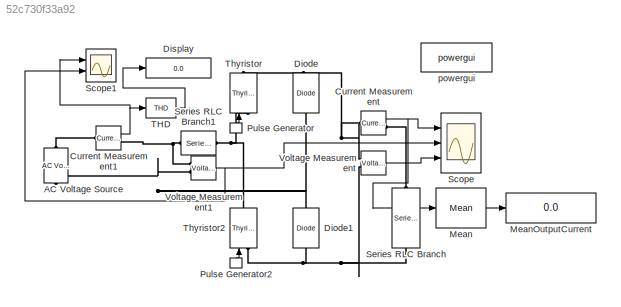
MODEL slx_52c730f33a92
KIND model
CONFIG AbsTol = auto
CONFIG EnableMultiTasking = off
CONFIG FixedStep = auto
CONFIG MaxStep = auto
CONFIG MinStep = auto
CONFIG RelTol = 1e-3
CONFIG SampleTimeConstraint = Unconstrained
CONFIG Solver = FixedStepAuto
CONFIG SolverName = FixedStepAuto
CONFIG StartTime = 0.0
CONFIG StopTime = 2
BLOCK [Reference] AC Voltage Source  REF=powerlib/Electrical
Sources/AC Voltage Source
  Ports = [0, 0, 0, 0, 0, 1, 1]
  SourceBlock = powerlib/Electrical\nSources/AC Voltage Source
  SourceProductBaseCode = PS
  SourceProductName = Simscape Power Systems
  SourceType = AC Voltage Source
BLOCK [Reference] Current Measurement  REF=powerlib/Measurements/Current Measurement
  Ports = [0, 1, 0, 0, 0, 1, 1]
  SourceBlock = powerlib/Measurements/Current Measurement
  SourceProductBaseCode = PS
  SourceProductName = Simscape Power Systems
  SourceType = Current Measurement
  UserDataPersistent = on
BLOCK [Reference] Current Measurement1  REF=powerlib/Measurements/Current Measurement
  Ports = [0, 1, 0, 0, 0, 1, 1]
  SourceBlock = powerlib/Measurements/Current Measurement
  SourceProductBaseCode = PS
  SourceProductName = Simscape Power Systems
  SourceType = Current Measurement
  UserDataPersistent = on
BLOCK [Reference] Diode  REF=powerlib/Power
Electronics/Diode
  Ports = [0, 0, 0, 0, 0, 1, 1]
  SourceBlock = powerlib/Power\nElectronics/Diode
  SourceProductBaseCode = PS
  SourceProductName = Simscape Power Systems
  SourceType = Diode
BLOCK [Reference] Diode1  REF=powerlib/Power
Electronics/Diode
  Ports = [0, 0, 0, 0, 0, 1, 1]
  SourceBlock = powerlib/Power\nElectronics/Diode
  SourceProductBaseCode = PS
  SourceProductName = Simscape Power Systems
  SourceType = Diode
BLOCK [Display] Display
  Decimation = 1
  Ports = [1]
BLOCK [Reference] Mean  REF=powerlib_meascontrol/Measurements/Mean
  Ports = [1, 1]
  SourceBlock = powerlib_meascontrol/Measurements/Mean
  SourceProductBaseCode = PS
  SourceProductName = Simscape Power Systems
  SourceType = Mean
BLOCK [Display] MeanOutputCurrent
  Decimation = 1
  Ports = [1]
BLOCK [DiscretePulseGenerator] Pulse Generator
  Period = 1/50
  PhaseDelay = ((1/50)*(55/360))
  Ports = [0, 1]
  PulseType = Time based
  PulseWidth = 50
BLOCK [DiscretePulseGenerator] Pulse Generator2
  Period = 1/50
  PhaseDelay = ((1/50)*(235/360))
  Ports = [0, 1]
  PulseType = Time based
  PulseWidth = 50
BLOCK [Scope] Scope
  Floating = off
  NumInputPorts = 3
  Ports = [3]
  ScopeSpecificationString = Simulink.scopes.TimeScopeBlockCfg('CurrentConfiguration', extmgr.ConfigurationSet(extmgr.Configuration('Core','General UI',true),extmgr.Configuration('Core','Source UI',true),extmgr.Configuration('Sources','WiredSimulink',true),extmgr.Configuration('Visuals','Time Domain',true,'SerializedDisplays',{struct('MinYLimReal','-353.94397','MaxYLimReal','340.52897','YLabelReal','','MinYLimMag',' 0.00000',...<+1445ch>
BLOCK [Scope] Scope1
  Floating = off
  NumInputPorts = 2
  Ports = [2]
  ScopeSpecificationString = Simulink.scopes.TimeScopeBlockCfg('CurrentConfiguration', extmgr.ConfigurationSet(extmgr.Configuration('Core','General UI',true),extmgr.Configuration('Core','Source UI',true),extmgr.Configuration('Sources','WiredSimulink',true,'DataLoggingVariableName','ScopeData1'),extmgr.Configuration('Visuals','Time Domain',true,'SerializedDisplays',{struct('MinYLimReal','-388.75','MaxYLimReal','379.53498','YLa...<+1452ch>
BLOCK [Reference] Series RLC Branch  REF=powerlib/Elements/Series RLC Branch
  Ports = [0, 0, 0, 0, 0, 1, 1]
  SourceBlock = powerlib/Elements/Series RLC Branch
  SourceProductBaseCode = PS
  SourceProductName = Simscape Power Systems
  SourceType = Series RLC Branch
BLOCK [Reference] Series RLC Branch1  REF=powerlib/Elements/Series RLC Branch
  Ports = [0, 0, 0, 0, 0, 1, 1]
  SourceBlock = powerlib/Elements/Series RLC Branch
  SourceProductBaseCode = PS
  SourceProductName = Simscape Power Systems
  SourceType = Series RLC Branch
BLOCK [Reference] THD  REF=powerlib_meascontrol/Measurements/THD
  Ports = [1, 1]
  SourceBlock = powerlib_meascontrol/Measurements/THD
  SourceProductBaseCode = PS
  SourceProductName = Simscape Power Systems
  SourceType = THD
BLOCK [Reference] Thyristor  REF=powerlib/Power
Electronics/Thyristor
  Ports = [1, 0, 0, 0, 0, 1, 1]
  SourceBlock = powerlib/Power\nElectronics/Thyristor
  SourceProductBaseCode = PS
  SourceProductName = Simscape Power Systems
  SourceType = Thyristor
BLOCK [Reference] Thyristor2  REF=powerlib/Power
Electronics/Thyristor
  Ports = [1, 0, 0, 0, 0, 1, 1]
  SourceBlock = powerlib/Power\nElectronics/Thyristor
  SourceProductBaseCode = PS
  SourceProductName = Simscape Power Systems
  SourceType = Thyristor
BLOCK [Reference] Voltage Measurement  REF=powerlib/Measurements/Voltage Measurement
  Ports = [0, 1, 0, 0, 0, 2]
  SourceBlock = powerlib/Measurements/Voltage Measurement
  SourceProductBaseCode = PS
  SourceProductName = Simscape Power Systems
  SourceType = Voltage Measurement
  UserDataPersistent = on
BLOCK [Reference] Voltage Measurement1  REF=powerlib/Measurements/Voltage Measurement
  Ports = [0, 1, 0, 0, 0, 2]
  SourceBlock = powerlib/Measurements/Voltage Measurement
  SourceProductBaseCode = PS
  SourceProductName = Simscape Power Systems
  SourceType = Voltage Measurement
  UserDataPersistent = on
BLOCK [Reference] powergui  REF=powerlib/powergui
  Ports = []
  Priority = 1
  SourceBlock = powerlib/powergui
  SourceProductBaseCode = PS
  SourceProductName = Simscape Power Systems
  SourceType = PSB option menu block
NET Current Measurement1:1 -> Scope1:1, THD:1
NET Current Measurement:1 -> Mean:1, Scope:1
LINE Mean:1 -> MeanOutputCurrent:1
LINE Pulse Generator2:1 -> Thyristor2:1
LINE Pulse Generator:1 -> Thyristor:1
LINE THD:1 -> Display:1
NET Voltage Measurement1:1 -> Scope1:2, Scope:2
LINE Voltage Measurement:1 -> Scope:3
PNET net1: AC Voltage Source:LConn1 -- Diode1:RConn1 -- Diode:LConn1 -- Voltage Measurement1:LConn2
PLINE AC Voltage Source:RConn1 -- Current Measurement1:LConn1
PNET net2: Current Measurement1:RConn1 -- Series RLC Branch1:LConn1 -- Voltage Measurement1:LConn1
PNET net3: Current Measurement:LConn1 -- Diode:RConn1 -- Thyristor:RConn1 -- Voltage Measurement:LConn1
PLINE Current Measurement:RConn1 -- Series RLC Branch:LConn1
PNET net4: Diode1:LConn1 -- Series RLC Branch:RConn1 -- Thyristor2:LConn1 -- Voltage Measurement:LConn2
PNET net5: Series RLC Branch1:RConn1 -- Thyristor2:RConn1 -- Thyristor:LConn1
note: NET lines group one-source signal fan-out (src -> all destinations, sorted); 1:1 wires keep LINE; PNET lines group multi-terminal physical nets as a canonical sorted terminal list (undirected conserving connections); 2-terminal nets keep the pairwise PLINE form
